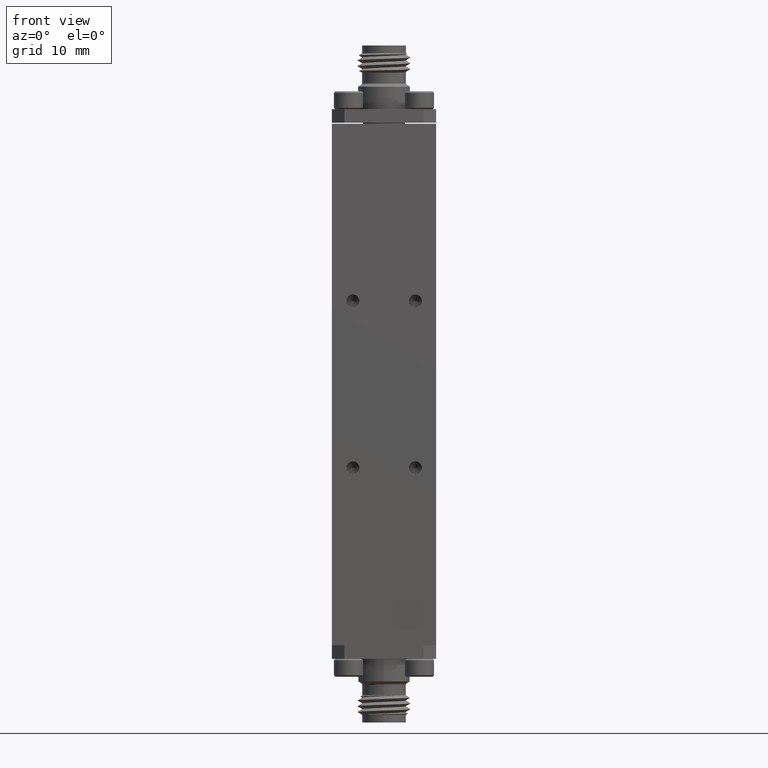
[diagram: clean part render]
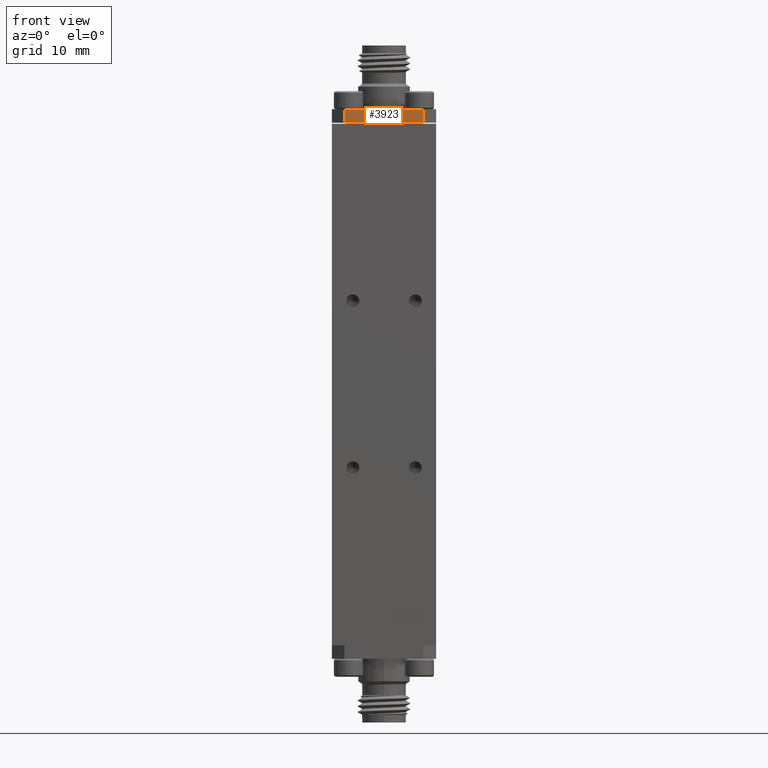
[diagram: same view with one face highlighted and labeled with its STEP entity id]
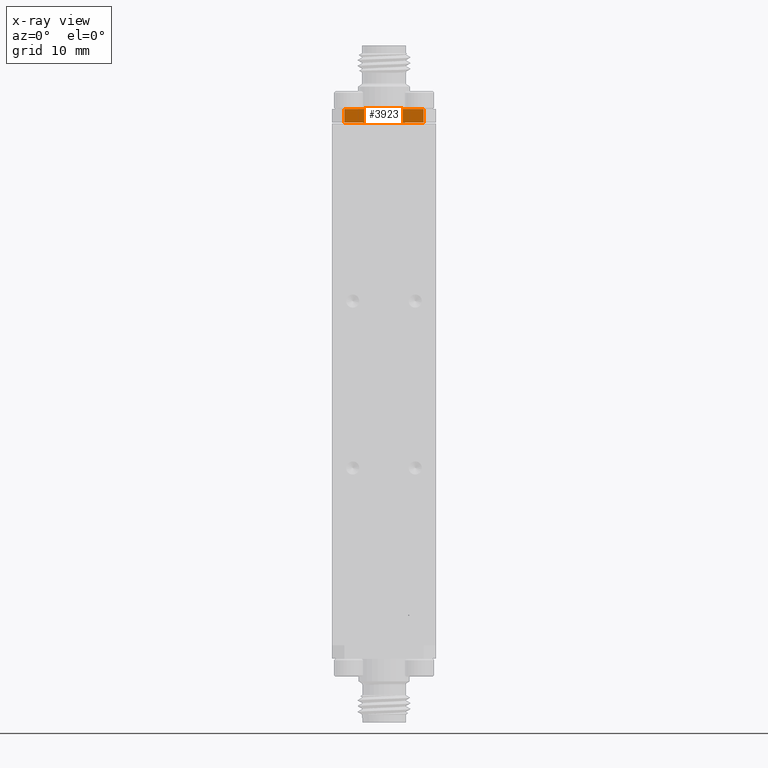
[diagram: x-ray of the same camera — body ghosted, the highlighted face saturated]
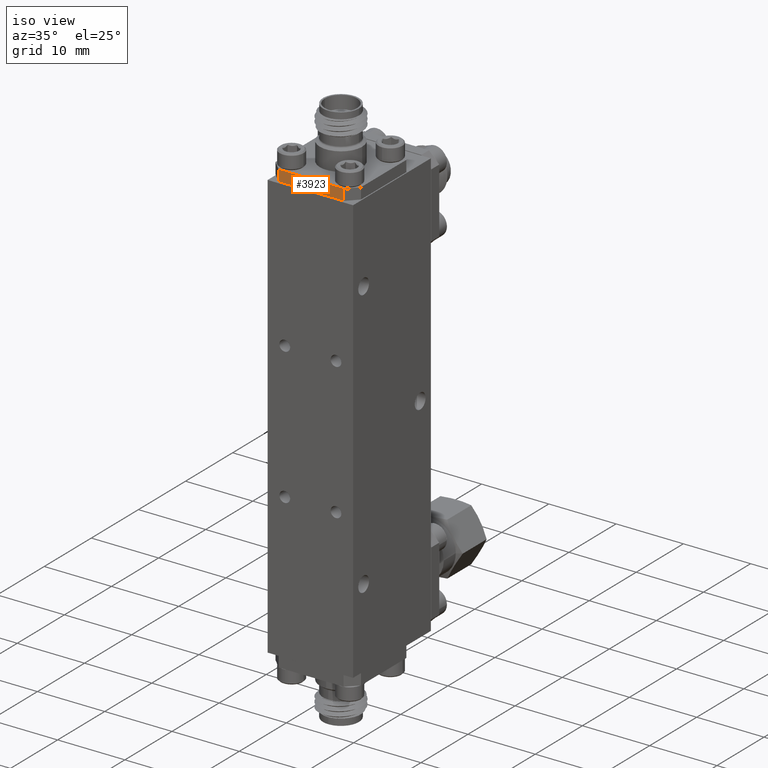
[diagram: same view with one face highlighted and labeled with its STEP entity id]
A machine part, front view. The second image highlights one B-rep face of the part: STEP entity #3923.
The next image is the same camera in x-ray: the body ghosted, the highlighted face saturated — about 0% of this face is hidden behind the body in this view.
A second angle (iso view) of the same face is appended — the face is thin or edge-on in the first view.
In plain terms, the highlighted planar face has unit normal (0, 1, -0).
Its self-contained STEP definition (entity closure, byte-faithful):
#153 = LINE ( 'NONE', #8791, #1227 ) ;
#1227 = VECTOR ( 'NONE', #8867, 39.37007874015748100 ) ;
#3221 = DIRECTION ( 'NONE',  ( 6.106226635438365900E-016, 1.000000000000000000, -1.665334536937730100E-016 ) ) ;
#3923 = ADVANCED_FACE ( 'NONE', ( #5231 ), #8203, .F. ) ;
#4727 = AXIS2_PLACEMENT_3D ( 'NONE', #18713, #3221, #9934 ) ;
#5011 = CARTESIAN_POINT ( 'NONE',  ( -1.585499139784813500, 0.2586979808095782300, 1.622181018322136600 ) ) ;
#5019 = VERTEX_POINT ( 'NONE', #5035 ) ;
#5035 = CARTESIAN_POINT ( 'NONE',  ( -1.145499139784813800, 0.2586979808095771800, 1.557181018322136000 ) ) ;
#5231 = FACE_OUTER_BOUND ( 'NONE', #18605, .T. ) ;
#6723 = VECTOR ( 'NONE', #15799, 39.37007874015748100 ) ;
#7315 = LINE ( 'NONE', #16029, #6723 ) ;
#8070 = LINE ( 'NONE', #5011, #9412 ) ;
#8203 = PLANE ( 'NONE',  #4727 ) ;
#8791 = CARTESIAN_POINT ( 'NONE',  ( -1.145499139784813800, 0.2586979808095782300, 1.622181018322136800 ) ) ;
#8867 = DIRECTION ( 'NONE',  ( -1.665334536937734800E-016, -5.551115123125782700E-017, 1.000000000000000000 ) ) ;
#8994 = EDGE_CURVE ( 'NONE', #9540, #14217, #8070, .T. ) ;
#9412 = VECTOR ( 'NONE', #12900, 39.37007874015748100 ) ;
#9540 = VERTEX_POINT ( 'NONE', #18401 ) ;
#9934 = DIRECTION ( 'NONE',  ( -1.000000000000000000, 6.106226635438364900E-016, -6.661338147750939200E-016 ) ) ;
#11300 = ORIENTED_EDGE ( 'NONE', *, *, #17051, .T. ) ;
#11848 = ORIENTED_EDGE ( 'NONE', *, *, #20197, .T. ) ;
#12900 = DIRECTION ( 'NONE',  ( 1.000000000000000000, -6.106226635438364900E-016, 6.661338147750939200E-016 ) ) ;
#14154 = DIRECTION ( 'NONE',  ( 1.000000000000000000, -6.106226635438364900E-016, 6.661338147750939200E-016 ) ) ;
#14217 = VERTEX_POINT ( 'NONE', #15758 ) ;
#15758 = CARTESIAN_POINT ( 'NONE',  ( -1.145499139784814000, 0.2586979808095782300, 1.622181018322136800 ) ) ;
#15799 = DIRECTION ( 'NONE',  ( 1.665334536937734800E-016, 5.551115123125782700E-017, -1.000000000000000000 ) ) ;
#16029 = CARTESIAN_POINT ( 'NONE',  ( -1.525499139784813700, 0.2586979808095781800, 1.622181018322136600 ) ) ;
#17051 = EDGE_CURVE ( 'NONE', #19395, #5019, #17844, .T. ) ;
#17844 = LINE ( 'NONE', #19207, #19454 ) ;
#18401 = CARTESIAN_POINT ( 'NONE',  ( -1.525499139784813900, 0.2586979808095781800, 1.622181018322136600 ) ) ;
#18605 = EDGE_LOOP ( 'NONE', ( #19170, #19677, #11300, #11848 ) ) ;
#18713 = CARTESIAN_POINT ( 'NONE',  ( -1.585499139784813500, 0.2586979808095782300, 1.622181018322136600 ) ) ;
#19170 = ORIENTED_EDGE ( 'NONE', *, *, #8994, .F. ) ;
#19207 = CARTESIAN_POINT ( 'NONE',  ( -1.585499139784813500, 0.2586979808095767900, 1.557181018322136000 ) ) ;
#19245 = EDGE_CURVE ( 'NONE', #9540, #19395, #7315, .T. ) ;
#19395 = VERTEX_POINT ( 'NONE', #20163 ) ;
#19454 = VECTOR ( 'NONE', #14154, 39.37007874015748100 ) ;
#19677 = ORIENTED_EDGE ( 'NONE', *, *, #19245, .T. ) ;
#20163 = CARTESIAN_POINT ( 'NONE',  ( -1.525499139784813700, 0.2586979808095773400, 1.557181018322136400 ) ) ;
#20197 = EDGE_CURVE ( 'NONE', #5019, #14217, #153, .T. ) ;